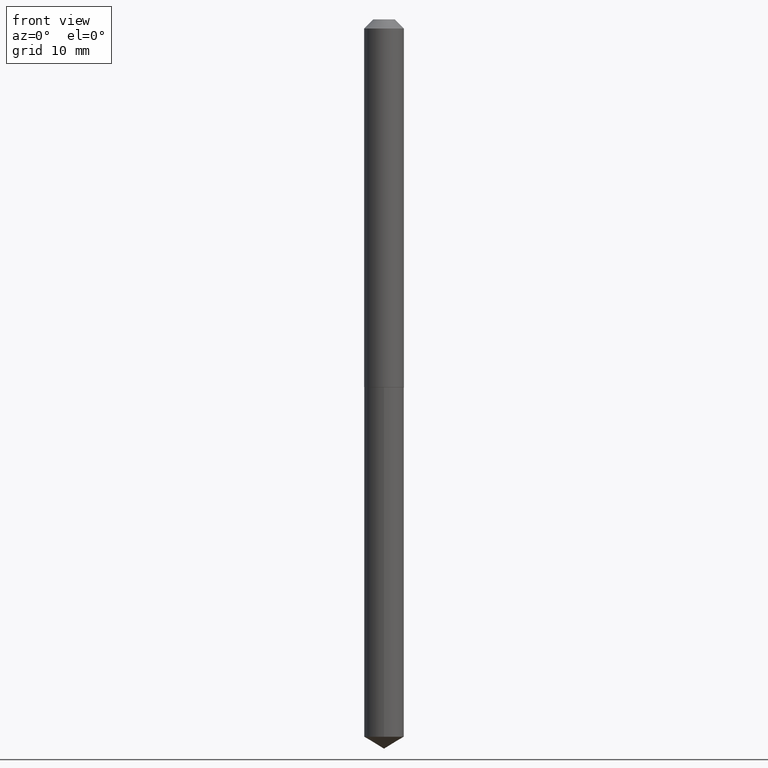
[diagram: clean part render]
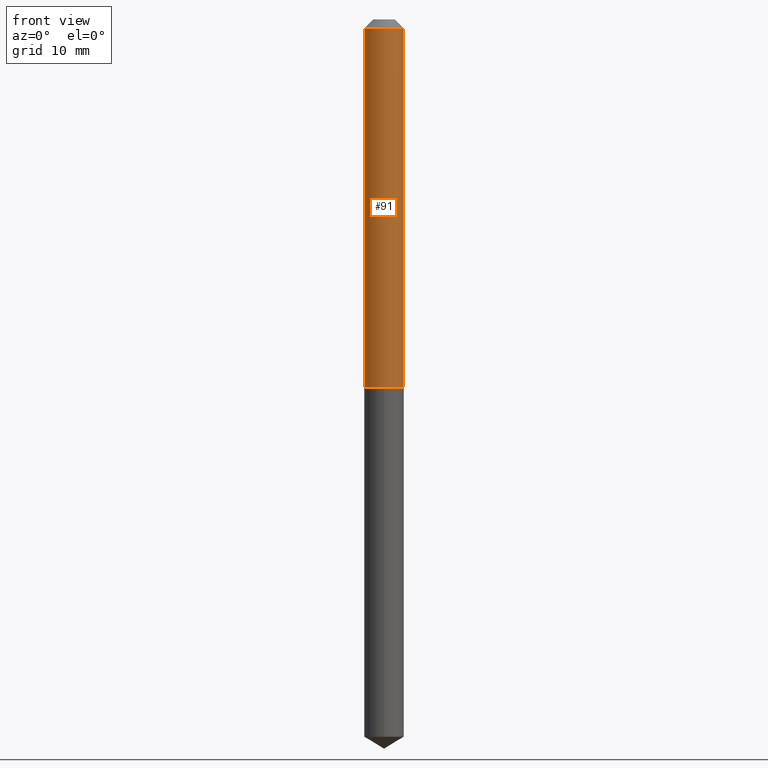
[diagram: same view with one face highlighted and labeled with its STEP entity id]
A machine part, front view. The second image highlights one B-rep face of the part: STEP entity #91.
In plain terms, the highlighted cylindrical surface (edge-blend (fillet) strip) has radius 1.7272 mm, axis along (-0, 0, 1).
Its self-contained STEP definition (entity closure, byte-faithful):
#1 = EDGE_LOOP ( 'NONE', ( #390, #190, #169, #112 ) ) ;
#10 = CARTESIAN_POINT ( 'NONE',  ( 0.000000000000000000, 0.000000000000000000, 0.000000000000000000 ) ) ;
#15 = VECTOR ( 'NONE', #370, 39.37007874015748143 ) ;
#34 = CYLINDRICAL_SURFACE ( 'NONE', #113, 0.06800000000000008815 ) ;
#36 = DIRECTION ( 'NONE',  ( 1.000000000000000000, -6.982962677686265922E-15, 4.876176775795935232E-29 ) ) ;
#41 = EDGE_CURVE ( 'NONE', #360, #384, #152, .T. ) ;
#42 = CARTESIAN_POINT ( 'NONE',  ( 3.082513430196366214E-29, -4.401012227611787991E-15, -1.260500000000000620 ) ) ;
#48 = CARTESIAN_POINT ( 'NONE',  ( -0.06800000000000000488, -1.771891449408448412E-15, -0.03125000000000020123 ) ) ;
#49 = EDGE_CURVE ( 'NONE', #235, #360, #80, .T. ) ;
#77 = EDGE_CURVE ( 'NONE', #208, #384, #236, .T. ) ;
#80 = CIRCLE ( 'NONE', #335, 0.06800000000000017142 ) ;
#91 = ADVANCED_FACE ( 'NONE', ( #189 ), #34, .T. ) ;
#103 = LINE ( 'NONE', #255, #387 ) ;
#112 = ORIENTED_EDGE ( 'NONE', *, *, #77, .F. ) ;
#113 = AXIS2_PLACEMENT_3D ( 'NONE', #10, #154, #36 ) ;
#152 = LINE ( 'NONE', #252, #15 ) ;
#154 = DIRECTION ( 'NONE',  ( -2.445468806185136597E-29, 3.491481338843145583E-15, 1.000000000000000000 ) ) ;
#157 = DIRECTION ( 'NONE',  ( 1.000000000000000000, -6.982962677686272233E-15, 0.000000000000000000 ) ) ;
#161 = CARTESIAN_POINT ( 'NONE',  ( -0.06800000000000017142, -3.917843167294917857E-15, -1.260500000000000620 ) ) ;
#162 = DIRECTION ( 'NONE',  ( -2.445468806185136877E-29, 3.491481338843145188E-15, 1.000000000000000000 ) ) ;
#169 = ORIENTED_EDGE ( 'NONE', *, *, #41, .T. ) ;
#170 = DIRECTION ( 'NONE',  ( -2.445468806185136597E-29, 3.491481338843145583E-15, 1.000000000000000000 ) ) ;
#176 = AXIS2_PLACEMENT_3D ( 'NONE', #342, #170, #320 ) ;
#189 = FACE_OUTER_BOUND ( 'NONE', #1, .T. ) ;
#190 = ORIENTED_EDGE ( 'NONE', *, *, #49, .T. ) ;
#194 = EDGE_CURVE ( 'NONE', #235, #208, #103, .T. ) ;
#208 = VERTEX_POINT ( 'NONE', #48 ) ;
#234 = CARTESIAN_POINT ( 'NONE',  ( 0.06800000000000017142, -4.875853689694455105E-15, -1.260500000000000620 ) ) ;
#235 = VERTEX_POINT ( 'NONE', #161 ) ;
#236 = CIRCLE ( 'NONE', #176, 0.06800000000000000488 ) ;
#252 = CARTESIAN_POINT ( 'NONE',  ( 0.06800000000000008815, -4.748414620826667201E-16, 3.315800207541240207E-30 ) ) ;
#255 = CARTESIAN_POINT ( 'NONE',  ( -0.06800000000000008815, 4.831690603168687527E-16, -3.344875861373340259E-30 ) ) ;
#306 = DIRECTION ( 'NONE',  ( -2.445468806185136597E-29, 3.491481338843145583E-15, 1.000000000000000000 ) ) ;
#320 = DIRECTION ( 'NONE',  ( 1.000000000000000000, -6.982962677686267499E-15, 0.000000000000000000 ) ) ;
#335 = AXIS2_PLACEMENT_3D ( 'NONE', #42, #306, #157 ) ;
#342 = CARTESIAN_POINT ( 'NONE',  ( 7.642090019328601786E-31, -1.091087918388490144E-16, -0.03125000000000020123 ) ) ;
#360 = VERTEX_POINT ( 'NONE', #234 ) ;
#370 = DIRECTION ( 'NONE',  ( -2.445468806185136877E-29, 3.491481338843145188E-15, 1.000000000000000000 ) ) ;
#384 = VERTEX_POINT ( 'NONE', #385 ) ;
#385 = CARTESIAN_POINT ( 'NONE',  ( 0.06800000000000000488, -5.839502539215152291E-16, -0.03125000000000020123 ) ) ;
#387 = VECTOR ( 'NONE', #162, 39.37007874015748143 ) ;
#390 = ORIENTED_EDGE ( 'NONE', *, *, #194, .F. ) ;